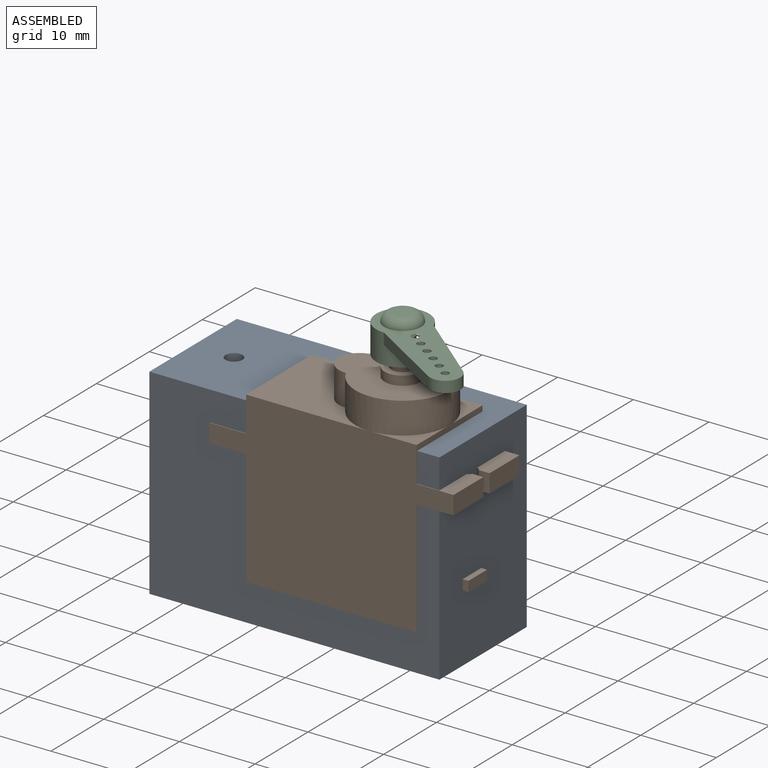
[diagram: assembled view]
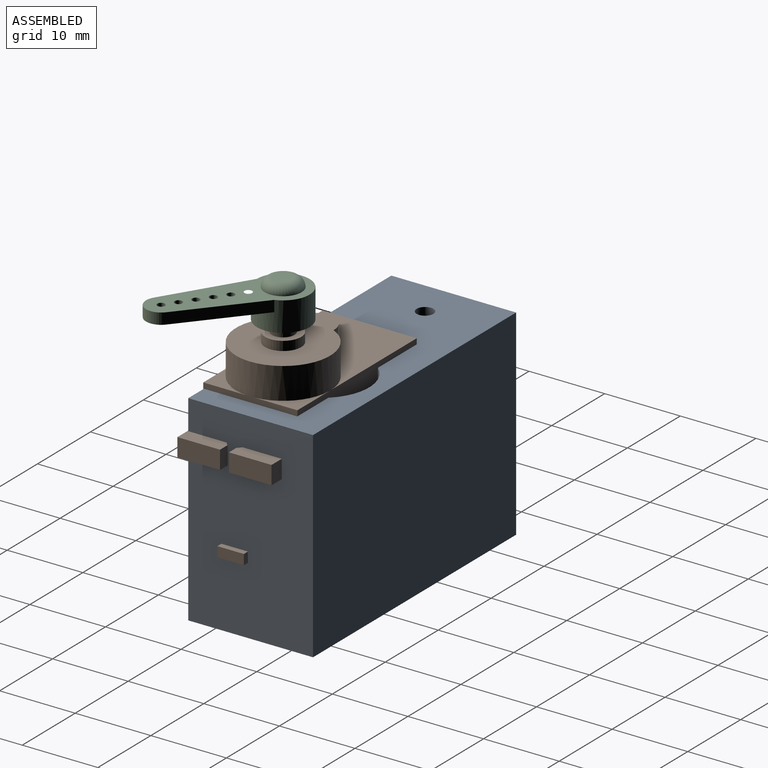
[diagram: assembled view, second angle]
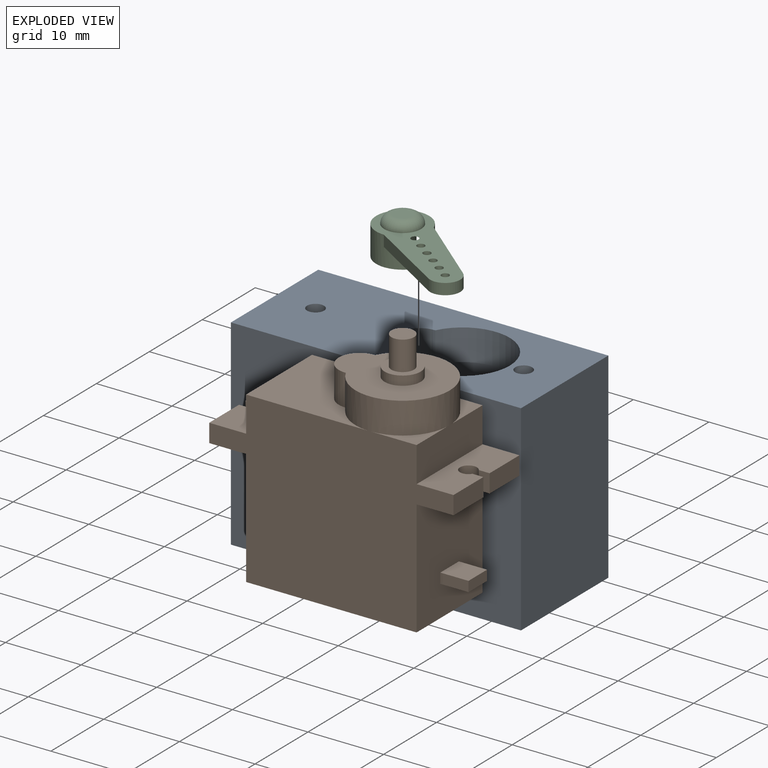
[diagram: exploded view]
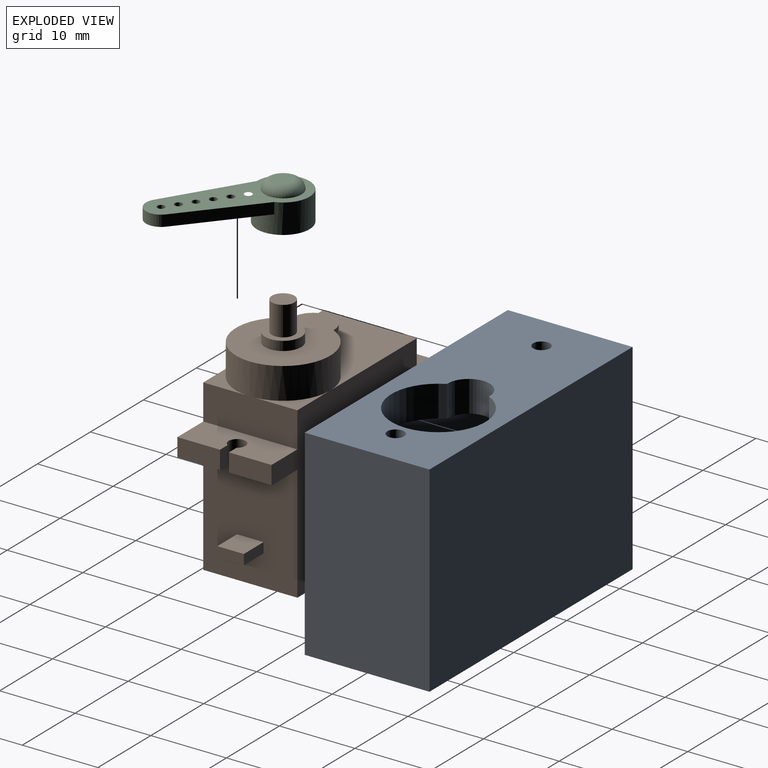
[diagram: exploded view, second angle]
ASSEMBLY  parts=3 mates=2
PART A: 20 faces, bbox 38.4x16.5x26.6 mm
  f0: plane 12.5x4.88mm, normal (0,0,-1), area 57.1mm2, adj f2,f4,f9,f16,f19
  f1: plane 4.67x3.54mm, normal (-1,0,0), area 16.5mm2, adj f4,f10,f11,f14
  f2: plane 32.36x22.4mm, normal (0,-1,0), area 679.3mm2, adj f0,f3,f9,f10,f11,f15,f16,f17
  f3: plane 4.67x3.54mm, normal (-1,0,0), area 16.5mm2, adj f2,f10,f11,f14
  f4: plane 32.36x22.4mm, normal (0,1,0), area 679.3mm2, adj f0,f1,f9,f10,f11,f15,f16,f17
  f5: plane 26.56x16.5mm, normal (1,0,0), area 438.2mm2, adj f6,f8,f12,f17
  f6: plane 38.36x26.56mm, normal (0,1,0), area 1018.8mm2, adj f5,f7,f12,f17
  f7: plane 26.56x16.5mm, normal (-1,0,0), area 438.2mm2, adj f6,f8,f12,f17
  f8: plane 38.36x26.56mm, normal (0,-1,0), area 1018.8mm2, adj f5,f7,f12,f17
  f9: plane 12.5x4.67mm, normal (1,0,0), area 58.4mm2, adj f0,f2,f4,f11
  f10: plane 12.5x4.88mm, normal (0,0,-1), area 54.8mm2, adj f1,f2,f3,f4,f14,f15,f18
  f11: plane 22.6x12.5mm, normal (0,0,-1), area 152.4mm2, adj f1,f2,f3,f4,f9,f13,f14
  f12: plane 38.36x16.5mm, normal (0,0,1), area 492.7mm2, adj f5,f6,f7,f8,f13,f14,f18,f19
  f13: cylinder r=2.79mm len=5.58mm, axis (0,0,1), area 37.5mm2, adj f11,f12,f14
  f14: cylinder r=6.23mm len=12.46mm, axis (0,0,1), area 165mm2, adj f1,f3,f10,f11,f12,f13
  f15: plane 17.73x12.5mm, normal (-1,0,0), area 221.6mm2, adj f2,f4,f10,f17
  f16: plane 17.73x12.5mm, normal (1,0,0), area 221.6mm2, adj f0,f2,f4,f17
  f17: plane 38.36x16.5mm, normal (0,0,-1), area 228.4mm2, adj f2,f4,f5,f6,f7,f8,f15,f16
  f18: cylinder r=1.12mm len=8.83mm, axis (0,0,1), area 62.1mm2, adj f10,f12
  f19: cylinder r=1.12mm len=8.83mm, axis (0,0,1), area 62.1mm2, adj f0,f12
PART B: 37 faces, bbox 32.3x12.5x31.7 mm
  f0: cylinder r=2.39mm len=4.78mm, axis (0,0,-1), area 18.3mm2, adj f27,f34
  f1: plane 5.64x2.43mm, normal (1,0,0), area 13.7mm2, adj f4,f10,f15,f30
  f2: plane 5.64x2.43mm, normal (-1,0,0), area 13.7mm2, adj f3,f10,f12,f33
  f3: plane 12.45x4.88mm, normal (0,0,1), area 55.3mm2, adj f2,f8,f10,f14,f22,f31,f32,f33
  f4: plane 12.45x4.88mm, normal (0,0,-1), area 55.3mm2, adj f1,f7,f8,f10,f13,f28,f29,f30
  f5: plane 5.96x5.66mm, normal (0,0,1), area 8.2mm2, adj f10,f21,f26
  f6: plane 5.97x5.66mm, normal (0,0,1), area 8.2mm2, adj f8,f21,f26
  f7: plane 15.3x12.45mm, normal (1,0,0), area 185.8mm2, adj f4,f8,f10,f11,f16,f17,f18,f19
  f8: plane 32.32x22.41mm, normal (0,1,0), area 528.8mm2, adj f3,f4,f6,f7,f9,f11,f12,f13
  f9: plane 15.3x12.45mm, normal (-1,0,0), area 190.5mm2, adj f8,f10,f11,f12
  f10: plane 32.32x22.41mm, normal (0,-1,0), area 528.8mm2, adj f1,f2,f3,f4,f5,f7,f9,f11
  f11: plane 22.55x12.45mm, normal (0,0,-1), area 280.7mm2, adj f7,f8,f9,f10
  f12: plane 12.45x4.88mm, normal (0,0,-1), area 55.3mm2, adj f2,f8,f9,f10,f14,f31,f32,f33
  f13: plane 5.64x2.43mm, normal (1,0,0), area 13.7mm2, adj f4,f8,f15,f29
  f14: plane 5.64x2.43mm, normal (-1,0,0), area 13.7mm2, adj f3,f8,f12,f32
  f15: plane 12.45x4.88mm, normal (0,0,1), area 55.3mm2, adj f1,f8,f10,f13,f21,f28,f29,f30
  f16: plane 3.73x3.5mm, normal (0,0,-1), area 13mm2, adj f7,f17,f19,f20
  f17: plane 3.73x1.35mm, normal (0,1,0), area 5mm2, adj f7,f16,f18,f20
  f18: plane 3.73x3.5mm, normal (0,0,1), area 13mm2, adj f7,f17,f19,f20
  f19: plane 3.73x1.35mm, normal (0,-1,0), area 5mm2, adj f7,f16,f18,f20
  f20: plane 3.5x1.35mm, normal (1,0,0), area 4.7mm2, adj f16,f17,f18,f19
  f21: plane 12.45x4.67mm, normal (1,0,0), area 58.1mm2, adj f5,f6,f8,f10,f15,f24
  f22: plane 12.45x4.67mm, normal (-1,0,0), area 58.1mm2, adj f3,f8,f10,f23
  f23: plane 16.11x12.45mm, normal (0,0,1), area 132.4mm2, adj f8,f10,f22,f25,f26
  f24: plane 1.12x0.03mm, normal (0,0,-1), area 0mm2, adj f21,f26
  f25: cylinder r=2.77mm len=5.53mm, axis (0,0,-1), area 37mm2, adj f23,f26,f27
  f26: cylinder r=6.23mm len=12.46mm, axis (0,0,-1), area 139mm2, adj f5,f6,f8,f10,f23,f24,f25,f27
  f27: plane 14.69x12.46mm, normal (0,0,1), area 114.2mm2, adj f0,f25,f26
  f28: cylinder r=1.12mm len=2.43mm, axis (0,0,1), area 14.1mm2, adj f4,f15,f29,f30
  f29: plane 2.43x1.44mm, normal (0,-1,0), area 3.5mm2, adj f4,f13,f15,f28
  f30: plane 2.43x1.44mm, normal (0,1,0), area 3.5mm2, adj f1,f4,f15,f28
  f31: cylinder r=1.12mm len=2.43mm, axis (0,0,1), area 14.1mm2, adj f3,f12,f32,f33
  f32: plane 2.43x1.44mm, normal (0,-1,0), area 3.5mm2, adj f3,f12,f14,f31
  f33: plane 2.43x1.44mm, normal (0,1,0), area 3.5mm2, adj f2,f3,f12,f31
  f34: plane 4.78x4.78mm, normal (0,0,1), area 10.9mm2, adj f0,f35
  f35: cylinder r=1.5mm len=3.88mm, axis (0,0,1), area 36.6mm2, adj f34,f36
  f36: plane 3x3mm, normal (0,0,1), area 7.1mm2, adj f35
PART C: 21 faces, bbox 21.5x9x7.1 mm
  f0: cylinder r=1.5mm len=3mm, axis (0,0,-1), area 22.7mm2, adj f1,f2
  f1: plane 7x7mm, normal (0,0,-1), area 31.4mm2, adj f0,f3
  f2: plane 3x3mm, normal (0,0,-1), area 7.1mm2, adj f0
  f3: cylinder r=3.5mm len=7mm, axis (0,0,-1), area 75.5mm2, adj f1,f4,f5,f6,f7
  f4: plane 13.98x5.71mm, normal (0,0,-1), area 54.7mm2, adj f3,f5,f7,f8,f9,f10,f11,f12
  f5: plane 11.98x1.47mm, normal (0.07,-1,0), area 17.7mm2, adj f3,f4,f6,f8
  f6: plane 21.5x9mm, normal (0,0,1), area 73.7mm2, adj f3,f5,f7,f8,f9,f10,f11,f12
  f7: plane 11.98x1.47mm, normal (0.07,1,0), area 17.7mm2, adj f3,f4,f6,f10
  f8: plane 1.47x0.01mm, normal (1,0,0), area 0mm2, adj f4,f5,f6,f9
  f9: cylinder r=2mm len=4mm, axis (0,0,1), area 9.2mm2, adj f4,f6,f8,f10
  f10: plane 1.47x0.01mm, normal (1,0,0), area 0mm2, adj f4,f6,f7,f9
  f11: cylinder r=0.5mm len=1.47mm, axis (0,0,1), area 4.6mm2, adj f4,f6
  f12: cylinder r=0.5mm len=1.47mm, axis (0,0,1), area 4.6mm2, adj f4,f6
  f13: cylinder r=0.5mm len=1.47mm, axis (0,0,1), area 4.6mm2, adj f4,f6
  f14: cylinder r=0.5mm len=1.47mm, axis (0,0,1), area 4.6mm2, adj f4,f6
  f15: cylinder r=0.5mm len=1.47mm, axis (0,0,1), area 4.6mm2, adj f4,f6
  f16: cylinder r=0.5mm len=1mm, axis (0,0,1), area 0mm2, adj f6
  f17: torus R=1.25mm, axis (0,0,1), area 23.5mm2, adj f6,f18
  f18: plane 2.49x2.49mm, normal (0,0,1), area 4.9mm2, adj f17
  f19: plane 3x3mm, normal (0,0,1), area 0.8mm2, adj f20
  f20: cylinder r=0.5mm len=1mm, axis (0,0,1), area 0mm2, adj f19
PLACE A t=(-4.07,5.78,4.77)mm
PLACE B t=(0.88,3.67,-12.74)mm fixed
PLACE C rot(axis=(0,0,-1),35.8deg) t=(5.95,3.67,16.51)mm
MATE parallel A.f2 <-> B.f8  axis (0,-1,0) through (-4.07,12.03,-7.03)mm
MATE revolute C.f0 <-> B.f0  axis (0,0,-1) through (5.95,3.67,18.92)mm
